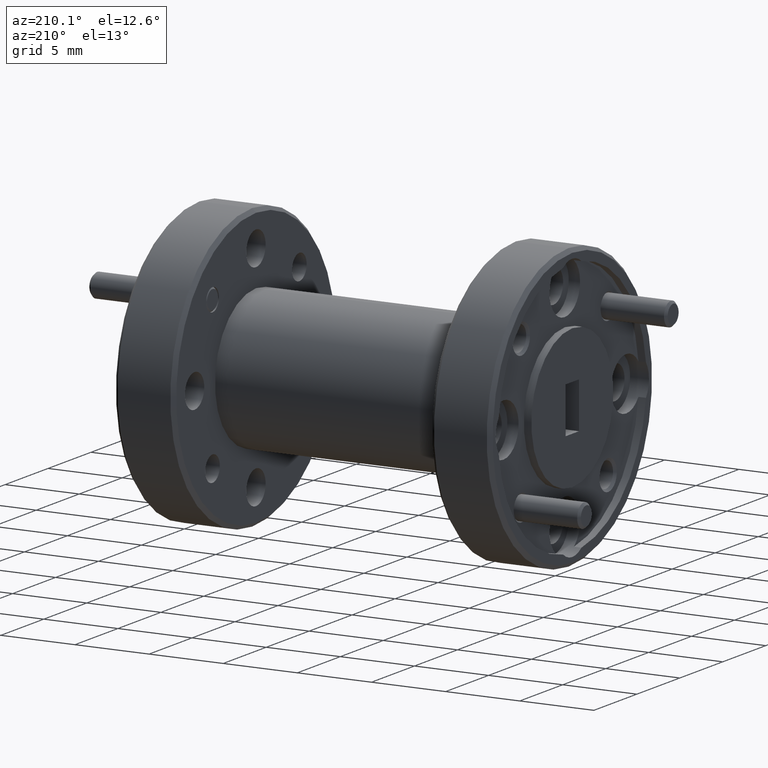
[diagram: clean part render]
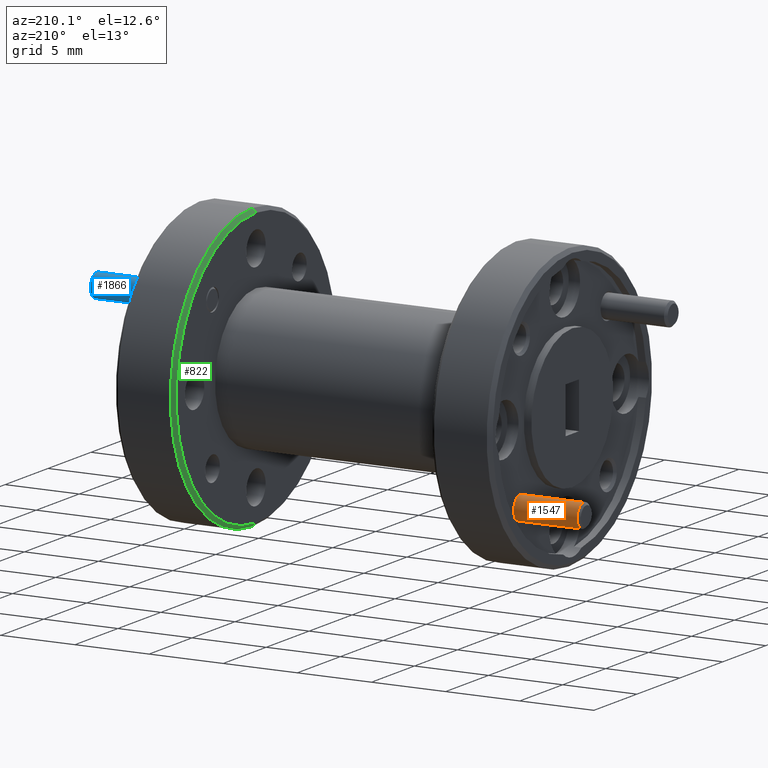
[diagram: same view with three faces highlighted in distinct colors, each labeled with its STEP entity id]
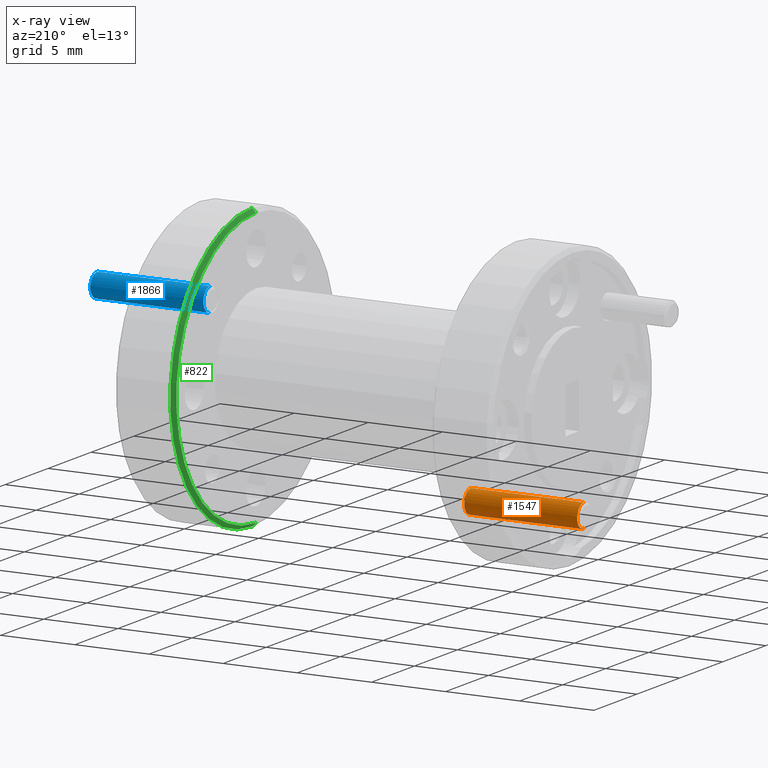
[diagram: x-ray of the same camera — body ghosted, the three highlighted faces saturated]
A machine part, auxiliary view with three faces highlighted in distinct colors.
The next image is the same camera in x-ray (body ghosted, the three faces saturated) — at least one of them is partly hidden behind the body in this view.
Their STEP definitions:

[orange] entity #1547 — the highlighted cylindrical surface (edge-blend (fillet) strip) has radius 0.7937 mm, axis along (1, 0, -0).
#176 = CARTESIAN_POINT ( 'NONE',  ( -3.340928697788352300, 0.9855597184799672600, 0.6573586257284009800 ) ) ;
#250 = VECTOR ( 'NONE', #3648, 39.37007874015748100 ) ;
#416 = DIRECTION ( 'NONE',  ( 1.000000000000000000, 0.0000000000000000000, -3.549874073494553100E-030 ) ) ;
#417 = CARTESIAN_POINT ( 'NONE',  ( -3.040928697788352100, 0.9855597184799664800, 0.6573586257281657200 ) ) ;
#436 = CIRCLE ( 'NONE', #1217, 0.03124999999999997600 ) ;
#486 = ORIENTED_EDGE ( 'NONE', *, *, #1288, .T. ) ;
#638 = DIRECTION ( 'NONE',  ( 1.000000000000000000, 0.0000000000000000000, -3.549874073494553100E-030 ) ) ;
#732 = CARTESIAN_POINT ( 'NONE',  ( -3.340928697788352300, 0.9855597184799688200, 0.6886086257260885000 ) ) ;
#749 = DIRECTION ( 'NONE',  ( 0.0000000000000000000, 0.0000000000000000000, -1.000000000000000000 ) ) ;
#841 = AXIS2_PLACEMENT_3D ( 'NONE', #3207, #2580, #3866 ) ;
#905 = VERTEX_POINT ( 'NONE', #176 ) ;
#975 = VERTEX_POINT ( 'NONE', #2207 ) ;
#1106 = ORIENTED_EDGE ( 'NONE', *, *, #3947, .T. ) ;
#1217 = AXIS2_PLACEMENT_3D ( 'NONE', #732, #416, #749 ) ;
#1288 = EDGE_CURVE ( 'NONE', #905, #975, #436, .T. ) ;
#1321 = CARTESIAN_POINT ( 'NONE',  ( -3.347178697788351500, 0.9855597184799688200, 0.7198586257260885000 ) ) ;
#1336 = AXIS2_PLACEMENT_3D ( 'NONE', #2707, #1741, #1393 ) ;
#1393 = DIRECTION ( 'NONE',  ( 0.0000000000000000000, 0.0000000000000000000, -1.000000000000000000 ) ) ;
#1547 = ADVANCED_FACE ( 'NONE', ( #1845 ), #1603, .T. ) ;
#1568 = LINE ( 'NONE', #2250, #2805 ) ;
#1603 = CYLINDRICAL_SURFACE ( 'NONE', #841, 0.03124999999999997600 ) ;
#1741 = DIRECTION ( 'NONE',  ( -1.000000000000000000, -0.0000000000000000000, 3.549874073494553100E-030 ) ) ;
#1844 = ORIENTED_EDGE ( 'NONE', *, *, #4034, .T. ) ;
#1845 = FACE_OUTER_BOUND ( 'NONE', #2559, .T. ) ;
#2143 = VERTEX_POINT ( 'NONE', #417 ) ;
#2207 = CARTESIAN_POINT ( 'NONE',  ( -3.340928697788352300, 0.9855597184799672600, 0.7198586257237761200 ) ) ;
#2250 = CARTESIAN_POINT ( 'NONE',  ( -3.347178697788351500, 0.9855597184799688200, 0.6573586257260886100 ) ) ;
#2356 = ORIENTED_EDGE ( 'NONE', *, *, #3905, .F. ) ;
#2559 = EDGE_LOOP ( 'NONE', ( #486, #1106, #1844, #2356 ) ) ;
#2580 = DIRECTION ( 'NONE',  ( 1.000000000000000000, 0.0000000000000000000, -3.549874073494553100E-030 ) ) ;
#2707 = CARTESIAN_POINT ( 'NONE',  ( -3.040928697788352100, 0.9855597184799688200, 0.6886086257260885000 ) ) ;
#2805 = VECTOR ( 'NONE', #638, 39.37007874015748100 ) ;
#2965 = LINE ( 'NONE', #1321, #250 ) ;
#3166 = CIRCLE ( 'NONE', #1336, 0.03124999999999997600 ) ;
#3207 = CARTESIAN_POINT ( 'NONE',  ( -3.347178697788351500, 0.9855597184799688200, 0.6886086257260885000 ) ) ;
#3648 = DIRECTION ( 'NONE',  ( 1.000000000000000000, 0.0000000000000000000, -3.549874073494553100E-030 ) ) ;
#3866 = DIRECTION ( 'NONE',  ( 0.0000000000000000000, 0.0000000000000000000, -1.000000000000000000 ) ) ;
#3905 = EDGE_CURVE ( 'NONE', #905, #2143, #1568, .T. ) ;
#3947 = EDGE_CURVE ( 'NONE', #975, #4244, #2965, .T. ) ;
#4034 = EDGE_CURVE ( 'NONE', #4244, #2143, #3166, .T. ) ;
#4195 = CARTESIAN_POINT ( 'NONE',  ( -3.040928697788352100, 0.9855597184799664800, 0.7198586257240138200 ) ) ;
#4244 = VERTEX_POINT ( 'NONE', #4195 ) ;

[blue] entity #1866 — the highlighted cylindrical surface (edge-blend (fillet) strip) has radius 0.7937 mm, axis along (-1, 0, -0).
#63 = EDGE_CURVE ( 'NONE', #3180, #1549, #2591, .T. ) ;
#85 = DIRECTION ( 'NONE',  ( -8.741913579725648600E-015, 0.0000000000000000000, 1.000000000000000000 ) ) ;
#120 = ORIENTED_EDGE ( 'NONE', *, *, #1113, .T. ) ;
#188 = CARTESIAN_POINT ( 'NONE',  ( -2.042178697788354000, 0.9855597184799688200, 1.117606190143531700 ) ) ;
#298 = DIRECTION ( 'NONE',  ( -8.741913579725648600E-015, 0.0000000000000000000, 1.000000000000000000 ) ) ;
#323 = AXIS2_PLACEMENT_3D ( 'NONE', #612, #3583, #1331 ) ;
#612 = CARTESIAN_POINT ( 'NONE',  ( -2.348428697788353500, 0.9855597184799688200, 1.086356190143529500 ) ) ;
#795 = CYLINDRICAL_SURFACE ( 'NONE', #3284, 0.03124999999999997600 ) ;
#899 = AXIS2_PLACEMENT_3D ( 'NONE', #3027, #3068, #85 ) ;
#964 = EDGE_LOOP ( 'NONE', ( #3917, #3861, #120, #3971 ) ) ;
#1113 = EDGE_CURVE ( 'NONE', #1231, #3595, #1926, .T. ) ;
#1231 = VERTEX_POINT ( 'NONE', #3105 ) ;
#1278 = CARTESIAN_POINT ( 'NONE',  ( -2.042178697788354000, 0.9855597184799688200, 1.086356190143531700 ) ) ;
#1331 = DIRECTION ( 'NONE',  ( -8.741913579725648600E-015, 0.0000000000000000000, 1.000000000000000000 ) ) ;
#1359 = LINE ( 'NONE', #3384, #1760 ) ;
#1549 = VERTEX_POINT ( 'NONE', #1933 ) ;
#1760 = VECTOR ( 'NONE', #2043, 39.37007874015748100 ) ;
#1866 = ADVANCED_FACE ( 'NONE', ( #3751 ), #795, .T. ) ;
#1926 = CIRCLE ( 'NONE', #323, 0.03124999999999997600 ) ;
#1933 = CARTESIAN_POINT ( 'NONE',  ( -2.048428697788353200, 0.9855597184799672600, 1.055106190143608700 ) ) ;
#2043 = DIRECTION ( 'NONE',  ( -1.000000000000000000, 0.0000000000000000000, -6.982962677686263600E-015 ) ) ;
#2336 = CARTESIAN_POINT ( 'NONE',  ( -2.048428697788353700, 0.9855597184799672600, 1.117606190143454900 ) ) ;
#2491 = DIRECTION ( 'NONE',  ( -1.000000000000000000, 0.0000000000000000000, -6.982962677686263600E-015 ) ) ;
#2588 = DIRECTION ( 'NONE',  ( -1.000000000000000000, 0.0000000000000000000, -6.982962677686263600E-015 ) ) ;
#2591 = CIRCLE ( 'NONE', #899, 0.03124999999999997600 ) ;
#2646 = CARTESIAN_POINT ( 'NONE',  ( -2.348428697788353900, 0.9855597184799664800, 1.117606190145929100 ) ) ;
#2700 = VECTOR ( 'NONE', #2491, 39.37007874015748100 ) ;
#3027 = CARTESIAN_POINT ( 'NONE',  ( -2.048428697788353700, 0.9855597184799688200, 1.086356190143531700 ) ) ;
#3068 = DIRECTION ( 'NONE',  ( -1.000000000000000000, 0.0000000000000000000, -6.982962677686263600E-015 ) ) ;
#3105 = CARTESIAN_POINT ( 'NONE',  ( -2.348428697788353500, 0.9855597184799664800, 1.055106190141127600 ) ) ;
#3119 = EDGE_CURVE ( 'NONE', #1549, #1231, #1359, .T. ) ;
#3180 = VERTEX_POINT ( 'NONE', #2336 ) ;
#3284 = AXIS2_PLACEMENT_3D ( 'NONE', #1278, #2588, #298 ) ;
#3384 = CARTESIAN_POINT ( 'NONE',  ( -2.042178697788353600, 0.9855597184799688200, 1.055106190143531700 ) ) ;
#3583 = DIRECTION ( 'NONE',  ( 1.000000000000000000, -0.0000000000000000000, 6.982962677686263600E-015 ) ) ;
#3595 = VERTEX_POINT ( 'NONE', #2646 ) ;
#3751 = FACE_OUTER_BOUND ( 'NONE', #964, .T. ) ;
#3773 = LINE ( 'NONE', #188, #2700 ) ;
#3861 = ORIENTED_EDGE ( 'NONE', *, *, #3119, .T. ) ;
#3917 = ORIENTED_EDGE ( 'NONE', *, *, #63, .T. ) ;
#3971 = ORIENTED_EDGE ( 'NONE', *, *, #4279, .F. ) ;
#4279 = EDGE_CURVE ( 'NONE', #3180, #3595, #3773, .T. ) ;

[green] entity #822 — the highlighted conical surface has half-angle 45 deg.
#38 = DIRECTION ( 'NONE',  ( 0.7071067811865571200, 0.0000000000000000000, -0.7071067811865378000 ) ) ;
#101 = ORIENTED_EDGE ( 'NONE', *, *, #4095, .T. ) ;
#127 = VECTOR ( 'NONE', #38, 39.37007874015748900 ) ;
#138 = CIRCLE ( 'NONE', #4314, 0.3650000000000000500 ) ;
#210 = EDGE_LOOP ( 'NONE', ( #101, #2204, #3985, #1496 ) ) ;
#401 = VECTOR ( 'NONE', #3960, 39.37007874015748900 ) ;
#733 = EDGE_CURVE ( 'NONE', #3345, #3984, #1241, .T. ) ;
#822 = ADVANCED_FACE ( 'NONE', ( #1558 ), #1133, .T. ) ;
#1010 = DIRECTION ( 'NONE',  ( -1.000000000000000000, -0.0000000000000000000, -0.0000000000000000000 ) ) ;
#1047 = DIRECTION ( 'NONE',  ( 1.000000000000000000, 0.0000000000000000000, 0.0000000000000000000 ) ) ;
#1133 = CONICAL_SURFACE ( 'NONE', #3700, 0.3750000000000002200, 0.7853981633974346200 ) ;
#1170 = VERTEX_POINT ( 'NONE', #2300 ) ;
#1241 = LINE ( 'NONE', #2388, #127 ) ;
#1496 = ORIENTED_EDGE ( 'NONE', *, *, #733, .F. ) ;
#1558 = FACE_OUTER_BOUND ( 'NONE', #210, .T. ) ;
#1674 = CARTESIAN_POINT ( 'NONE',  ( -2.344678697788351600, 0.7866859362712517200, 0.8874824079348078200 ) ) ;
#1815 = CARTESIAN_POINT ( 'NONE',  ( -2.354678697788351800, 0.7866859362712517200, 0.5224824079348077100 ) ) ;
#1952 = CIRCLE ( 'NONE', #4113, 0.3750000000000001100 ) ;
#1980 = EDGE_CURVE ( 'NONE', #3641, #3984, #1952, .T. ) ;
#2081 = CARTESIAN_POINT ( 'NONE',  ( -2.344678697788351600, 0.7866859362712517200, 0.8874824079348078200 ) ) ;
#2204 = ORIENTED_EDGE ( 'NONE', *, *, #2974, .T. ) ;
#2300 = CARTESIAN_POINT ( 'NONE',  ( -2.354678697788351800, 0.7866859362712517200, 1.252482407934807800 ) ) ;
#2388 = CARTESIAN_POINT ( 'NONE',  ( -2.344678697788351600, 0.7866859362712517200, 0.5124824079348075900 ) ) ;
#2622 = CARTESIAN_POINT ( 'NONE',  ( -2.344678697788351600, 0.7866859362712517200, 1.262482407934808000 ) ) ;
#2715 = CARTESIAN_POINT ( 'NONE',  ( -2.354678697788351800, 0.7866859362712517200, 0.8874824079348078200 ) ) ;
#2974 = EDGE_CURVE ( 'NONE', #1170, #3641, #3400, .T. ) ;
#3321 = CARTESIAN_POINT ( 'NONE',  ( -2.344678697788351600, 0.7866859362712517200, 0.5124824079348077000 ) ) ;
#3338 = DIRECTION ( 'NONE',  ( 0.0000000000000000000, 0.0000000000000000000, -1.000000000000000000 ) ) ;
#3342 = DIRECTION ( 'NONE',  ( 0.0000000000000000000, 0.0000000000000000000, -1.000000000000000000 ) ) ;
#3345 = VERTEX_POINT ( 'NONE', #1815 ) ;
#3355 = DIRECTION ( 'NONE',  ( 0.0000000000000000000, 0.0000000000000000000, -1.000000000000000000 ) ) ;
#3400 = LINE ( 'NONE', #4229, #401 ) ;
#3641 = VERTEX_POINT ( 'NONE', #2622 ) ;
#3700 = AXIS2_PLACEMENT_3D ( 'NONE', #2081, #4060, #3342 ) ;
#3960 = DIRECTION ( 'NONE',  ( 0.7071067811865571200, 8.659560562354814500E-017, 0.7071067811865378000 ) ) ;
#3984 = VERTEX_POINT ( 'NONE', #3321 ) ;
#3985 = ORIENTED_EDGE ( 'NONE', *, *, #1980, .T. ) ;
#4060 = DIRECTION ( 'NONE',  ( 1.000000000000000000, 0.0000000000000000000, 0.0000000000000000000 ) ) ;
#4095 = EDGE_CURVE ( 'NONE', #3345, #1170, #138, .T. ) ;
#4113 = AXIS2_PLACEMENT_3D ( 'NONE', #1674, #1010, #3338 ) ;
#4229 = CARTESIAN_POINT ( 'NONE',  ( -2.344678697788351600, 0.7866859362712517200, 1.262482407934808000 ) ) ;
#4314 = AXIS2_PLACEMENT_3D ( 'NONE', #2715, #1047, #3355 ) ;